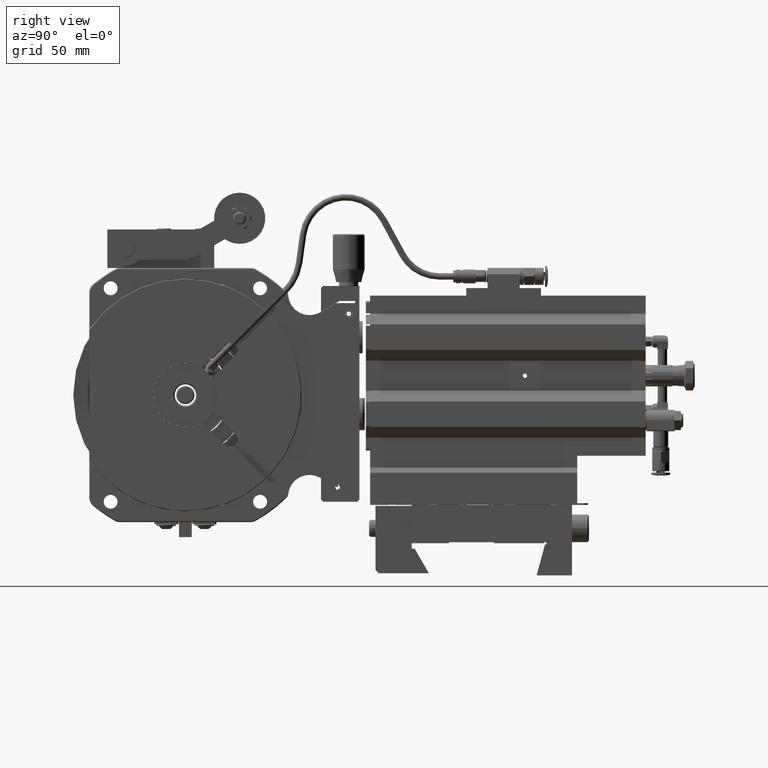
[diagram: clean part render]
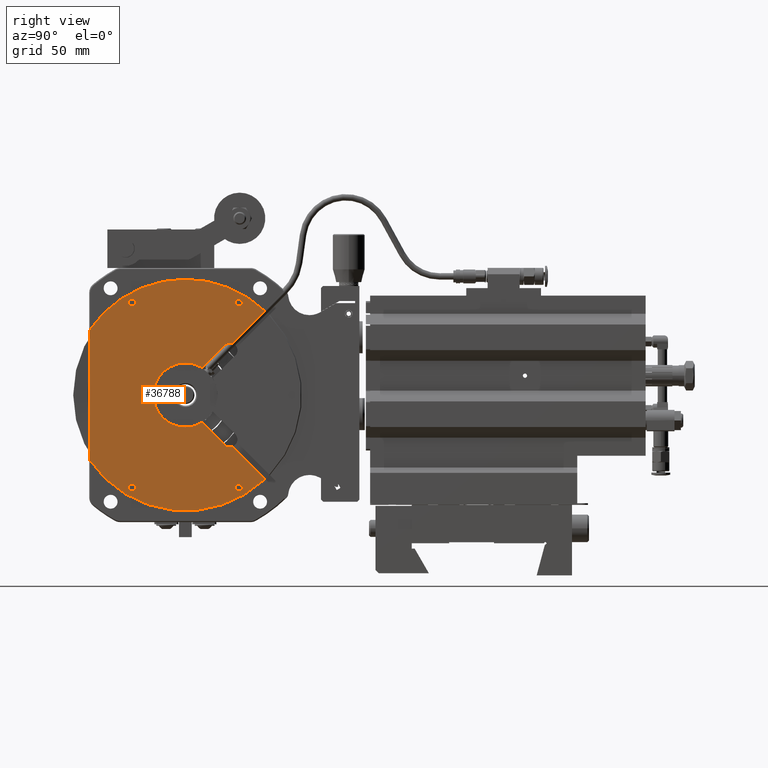
[diagram: same view with one face highlighted and labeled with its STEP entity id]
A machine part, right view. The second image highlights one B-rep face of the part: STEP entity #36788.
In plain terms, the highlighted planar face has unit normal (1, 0, 0).
Its self-contained STEP definition (entity closure, byte-faithful):
#98 = DIRECTION ( 'NONE',  ( -1.000000000000000000, -2.775557561562891351E-17, 0.000000000000000000 ) ) ;
#434 = EDGE_CURVE ( 'NONE', #58456, #15086, #33920, .T. ) ;
#784 = DIRECTION ( 'NONE',  ( 0.000000000000000000, 0.000000000000000000, -1.000000000000000000 ) ) ;
#974 = CARTESIAN_POINT ( 'NONE',  ( 0.3661417322834993326, 1.023622047244150846, -1.639813786977230237 ) ) ;
#1434 = VERTEX_POINT ( 'NONE', #9101 ) ;
#1710 = EDGE_CURVE ( 'NONE', #1434, #60061, #22628, .T. ) ;
#2246 = VERTEX_POINT ( 'NONE', #56303 ) ;
#2681 = ORIENTED_EDGE ( 'NONE', *, *, #33954, .F. ) ;
#3244 = DIRECTION ( 'NONE',  ( -1.000000000000000000, -2.775557561562891351E-17, 0.000000000000000000 ) ) ;
#3613 = EDGE_CURVE ( 'NONE', #9409, #5123, #34610, .T. ) ;
#3758 = CIRCLE ( 'NONE', #24328, 2.133858267716535639 ) ;
#4122 = CARTESIAN_POINT ( 'NONE',  ( 0.3661417322834993882, 0.03937007874019381876, 2.133858267716535639 ) ) ;
#4452 = DIRECTION ( 'NONE',  ( 0.000000000000000000, 0.000000000000000000, -1.000000000000000000 ) ) ;
#4712 = DIRECTION ( 'NONE',  ( 0.000000000000000000, 0.000000000000000000, 1.000000000000000000 ) ) ;
#5028 = CARTESIAN_POINT ( 'NONE',  ( 0.3661417322834993882, -1.732283464566892750, 7.210342506960436032E-29 ) ) ;
#5123 = VERTEX_POINT ( 'NONE', #49149 ) ;
#5477 = AXIS2_PLACEMENT_3D ( 'NONE', #43325, #18893, #4452 ) ;
#5878 = VERTEX_POINT ( 'NONE', #25077 ) ;
#5903 = DIRECTION ( 'NONE',  ( 1.000000000000000000, 2.775557561562891351E-17, 0.000000000000000000 ) ) ;
#5952 = DIRECTION ( 'NONE',  ( 1.962615573354722656E-17, -0.7071067811865489050, -0.7071067811865460184 ) ) ;
#6746 = DIRECTION ( 'NONE',  ( 1.000000000000000000, 2.775557561562891351E-17, 0.000000000000000000 ) ) ;
#7298 = CARTESIAN_POINT ( 'NONE',  ( 0.3661417322834993326, 0.8606161435040957652, -0.9590413403544563176 ) ) ;
#7403 = EDGE_CURVE ( 'NONE', #38588, #38699, #59773, .T. ) ;
#7473 = CARTESIAN_POINT ( 'NONE',  ( 0.3661417322834994437, -1.732283464566892972, -1.189367407149556133 ) ) ;
#7505 = DIRECTION ( 'NONE',  ( 1.962615573354714952E-17, -0.7071067811865461294, -0.7071067811865487940 ) ) ;
#7518 = DIRECTION ( 'NONE',  ( -1.962615573354722656E-17, 0.7071067811865489050, -0.7071067811865460184 ) ) ;
#7685 = EDGE_CURVE ( 'NONE', #47093, #5878, #24951, .T. ) ;
#7884 = ORIENTED_EDGE ( 'NONE', *, *, #60158, .F. ) ;
#8436 = CARTESIAN_POINT ( 'NONE',  ( 0.3661417322834993326, 0.7631801697185477407, 0.9186820385494527397 ) ) ;
#8735 = AXIS2_PLACEMENT_3D ( 'NONE', #33634, #9464, #29142 ) ;
#9101 = CARTESIAN_POINT ( 'NONE',  ( 0.3661417322834993326, -0.9448818897637513148, 1.639813786977237786 ) ) ;
#9409 = VERTEX_POINT ( 'NONE', #60518 ) ;
#9464 = DIRECTION ( 'NONE',  ( 1.000000000000000000, 2.775557561562891351E-17, 0.000000000000000000 ) ) ;
#9966 = CIRCLE ( 'NONE', #56166, 0.5905511811023621549 ) ;
#9990 = ORIENTED_EDGE ( 'NONE', *, *, #39467, .F. ) ;
#10055 = ORIENTED_EDGE ( 'NONE', *, *, #63501, .F. ) ;
#10370 = DIRECTION ( 'NONE',  ( 0.000000000000000000, 0.000000000000000000, 1.000000000000000000 ) ) ;
#10597 = ORIENTED_EDGE ( 'NONE', *, *, #54410, .F. ) ;
#10730 = EDGE_CURVE ( 'NONE', #5123, #9409, #30331, .T. ) ;
#10853 = VECTOR ( 'NONE', #5952, 39.37007874015748854 ) ;
#11021 = VECTOR ( 'NONE', #55968, 39.37007874015748854 ) ;
#11276 = VERTEX_POINT ( 'NONE', #14245 ) ;
#11357 = CARTESIAN_POINT ( 'NONE',  ( 0.3661417322834993326, 1.023622047244150846, -1.704774416898489964 ) ) ;
#11408 = CARTESIAN_POINT ( 'NONE',  ( 0.3661417322834992216, 1.650257441073912146, -1.688836141362150212 ) ) ;
#11466 = ORIENTED_EDGE ( 'NONE', *, *, #63627, .F. ) ;
#12178 = CARTESIAN_POINT ( 'NONE',  ( 0.3661417322834994437, -1.732283464566892972, 1.189367407149556133 ) ) ;
#12378 = DIRECTION ( 'NONE',  ( 0.000000000000000000, 0.000000000000000000, -1.000000000000000000 ) ) ;
#13095 = ORIENTED_EDGE ( 'NONE', *, *, #41914, .F. ) ;
#13350 = FACE_BOUND ( 'NONE', #52584, .T. ) ;
#13560 = AXIS2_PLACEMENT_3D ( 'NONE', #32513, #36678, #46938 ) ;
#14110 = CIRCLE ( 'NONE', #25440, 0.1377952755905511584 ) ;
#14245 = CARTESIAN_POINT ( 'NONE',  ( 0.3661417322834992216, 1.508757897156520089, 1.547336597444758821 ) ) ;
#14457 = CIRCLE ( 'NONE', #51486, 0.1377952755905511584 ) ;
#14617 = AXIS2_PLACEMENT_3D ( 'NONE', #21420, #16241, #12378 ) ;
#15086 = VERTEX_POINT ( 'NONE', #37835 ) ;
#15496 = CARTESIAN_POINT ( 'NONE',  ( 0.3661417322834993882, 0.03937007874019381876, 7.212526238550921569E-29 ) ) ;
#16241 = DIRECTION ( 'NONE',  ( 1.000000000000000000, 2.775557561562891351E-17, 0.000000000000000000 ) ) ;
#16357 = CIRCLE ( 'NONE', #29749, 0.06496062992125951896 ) ;
#16748 = DIRECTION ( 'NONE',  ( 1.000000000000000000, 2.775557561562891351E-17, 0.000000000000000000 ) ) ;
#16904 = EDGE_CURVE ( 'NONE', #46315, #11276, #19439, .T. ) ;
#18002 = ORIENTED_EDGE ( 'NONE', *, *, #434, .F. ) ;
#18326 = VERTEX_POINT ( 'NONE', #31130 ) ;
#18486 = PLANE ( 'NONE',  #46508 ) ;
#18893 = DIRECTION ( 'NONE',  ( 1.000000000000000000, 2.775557561562891351E-17, 0.000000000000000000 ) ) ;
#19010 = DIRECTION ( 'NONE',  ( 0.000000000000000000, 0.000000000000000000, -1.000000000000000000 ) ) ;
#19124 = DIRECTION ( 'NONE',  ( 0.000000000000000000, 0.000000000000000000, -1.000000000000000000 ) ) ;
#19439 = CIRCLE ( 'NONE', #27703, 2.133858267716535639 ) ;
#19449 = FACE_BOUND ( 'NONE', #20821, .T. ) ;
#19765 = CARTESIAN_POINT ( 'NONE',  ( 0.3661417322834993326, 0.03937007874019388121, 0.5905511811023621549 ) ) ;
#20320 = ORIENTED_EDGE ( 'NONE', *, *, #7403, .F. ) ;
#20710 = CARTESIAN_POINT ( 'NONE',  ( 0.3661417322834993326, -0.9448818897637274450, -1.704774416898510614 ) ) ;
#20821 = EDGE_LOOP ( 'NONE', ( #43707, #13095 ) ) ;
#20861 = DIRECTION ( 'NONE',  ( 0.000000000000000000, 0.000000000000000000, 1.000000000000000000 ) ) ;
#21035 = DIRECTION ( 'NONE',  ( 1.000000000000000000, 2.775557561562891351E-17, 0.000000000000000000 ) ) ;
#21084 = LINE ( 'NONE', #50040, #10853 ) ;
#21259 = ORIENTED_EDGE ( 'NONE', *, *, #10730, .F. ) ;
#21420 = CARTESIAN_POINT ( 'NONE',  ( 0.3661417322834993326, -0.9448818897637274450, -1.704774416898510614 ) ) ;
#21509 = DIRECTION ( 'NONE',  ( 1.000000000000000000, 2.775557561562891351E-17, 0.000000000000000000 ) ) ;
#21837 = DIRECTION ( 'NONE',  ( 0.000000000000000000, 0.000000000000000000, -1.000000000000000000 ) ) ;
#21846 = DIRECTION ( 'NONE',  ( -1.000000000000000000, -2.775557561562891351E-17, 0.000000000000000000 ) ) ;
#21910 = CARTESIAN_POINT ( 'NONE',  ( 0.3661417322834993326, 0.7631801697185477407, -0.9186820385494527397 ) ) ;
#22300 = CIRCLE ( 'NONE', #38702, 0.1377952755905511584 ) ;
#22628 = CIRCLE ( 'NONE', #28783, 0.06496062992125951896 ) ;
#22968 = CARTESIAN_POINT ( 'NONE',  ( 0.3661417322834993326, 0.7631801697185477407, 0.9186820385494527397 ) ) ;
#23434 = VERTEX_POINT ( 'NONE', #33656 ) ;
#23561 = EDGE_LOOP ( 'NONE', ( #9990, #43001 ) ) ;
#23998 = FACE_BOUND ( 'NONE', #39943, .T. ) ;
#24328 = AXIS2_PLACEMENT_3D ( 'NONE', #52457, #3244, #38282 ) ;
#24585 = EDGE_CURVE ( 'NONE', #63672, #18326, #14457, .T. ) ;
#24951 = CIRCLE ( 'NONE', #14617, 0.06496062992125951896 ) ;
#25077 = CARTESIAN_POINT ( 'NONE',  ( 0.3661417322834993326, -0.9448818897637274450, -1.769735046819770119 ) ) ;
#25440 = AXIS2_PLACEMENT_3D ( 'NONE', #52676, #53295, #28863 ) ;
#26506 = ORIENTED_EDGE ( 'NONE', *, *, #16904, .F. ) ;
#27072 = DIRECTION ( 'NONE',  ( 0.000000000000000000, 0.000000000000000000, -1.000000000000000000 ) ) ;
#27338 = EDGE_CURVE ( 'NONE', #33554, #28431, #61623, .T. ) ;
#27676 = AXIS2_PLACEMENT_3D ( 'NONE', #59263, #21846, #41406 ) ;
#27703 = AXIS2_PLACEMENT_3D ( 'NONE', #15496, #98, #10370 ) ;
#28431 = VERTEX_POINT ( 'NONE', #44071 ) ;
#28783 = AXIS2_PLACEMENT_3D ( 'NONE', #55100, #50900, #46042 ) ;
#28863 = DIRECTION ( 'NONE',  ( 0.000000000000000000, 0.000000000000000000, -1.000000000000000000 ) ) ;
#29142 = DIRECTION ( 'NONE',  ( 0.000000000000000000, 0.000000000000000000, -1.000000000000000000 ) ) ;
#29749 = AXIS2_PLACEMENT_3D ( 'NONE', #11357, #5903, #784 ) ;
#30331 = CIRCLE ( 'NONE', #8735, 0.06496062992125951896 ) ;
#31130 = CARTESIAN_POINT ( 'NONE',  ( 0.3661417322834993326, 0.9109432990466826974, -0.9495219993349235388 ) ) ;
#31282 = ORIENTED_EDGE ( 'NONE', *, *, #56210, .F. ) ;
#31576 = DIRECTION ( 'NONE',  ( 0.000000000000000000, 0.000000000000000000, -1.000000000000000000 ) ) ;
#31811 = CARTESIAN_POINT ( 'NONE',  ( 0.3661417322834993326, 0.03937007874019381876, 7.212526238550921569E-29 ) ) ;
#32393 = ORIENTED_EDGE ( 'NONE', *, *, #3613, .F. ) ;
#32440 = VECTOR ( 'NONE', #7505, 39.37007874015748854 ) ;
#32513 = CARTESIAN_POINT ( 'NONE',  ( 0.3661417322834993326, 0.03937007874019381876, 7.212526238550921569E-29 ) ) ;
#33554 = VERTEX_POINT ( 'NONE', #22968 ) ;
#33634 = CARTESIAN_POINT ( 'NONE',  ( 0.3661417322834993326, 1.023622047244127087, 1.704774416898503731 ) ) ;
#33656 = CARTESIAN_POINT ( 'NONE',  ( 0.3661417322834993326, 1.508757897156520089, -1.547336597444758821 ) ) ;
#33920 = CIRCLE ( 'NONE', #49285, 0.06496062992125951896 ) ;
#33954 = EDGE_CURVE ( 'NONE', #56250, #37595, #42329, .T. ) ;
#34610 = CIRCLE ( 'NONE', #52081, 0.06496062992125951896 ) ;
#34847 = ORIENTED_EDGE ( 'NONE', *, *, #24585, .F. ) ;
#34872 = CIRCLE ( 'NONE', #27676, 2.133858267716535639 ) ;
#34886 = ORIENTED_EDGE ( 'NONE', *, *, #62029, .F. ) ;
#35882 = LINE ( 'NONE', #11408, #41851 ) ;
#36244 = ORIENTED_EDGE ( 'NONE', *, *, #54907, .F. ) ;
#36678 = DIRECTION ( 'NONE',  ( 1.000000000000000000, 2.775557561562891351E-17, 0.000000000000000000 ) ) ;
#36788 = ADVANCED_FACE ( 'NONE', ( #23998, #43891, #19449, #13350, #57770 ), #18486, .T. ) ;
#37595 = VERTEX_POINT ( 'NONE', #12178 ) ;
#37665 = ORIENTED_EDGE ( 'NONE', *, *, #54298, .F. ) ;
#37835 = CARTESIAN_POINT ( 'NONE',  ( 0.3661417322834993326, 1.023622047244150846, -1.769735046819749469 ) ) ;
#38118 = CARTESIAN_POINT ( 'NONE',  ( 0.3661417322834993326, 0.03937007874019381876, 7.212526238550921569E-29 ) ) ;
#38282 = DIRECTION ( 'NONE',  ( 0.000000000000000000, 0.000000000000000000, 1.000000000000000000 ) ) ;
#38588 = VERTEX_POINT ( 'NONE', #19765 ) ;
#38699 = VERTEX_POINT ( 'NONE', #52240 ) ;
#38702 = AXIS2_PLACEMENT_3D ( 'NONE', #45914, #21509, #20861 ) ;
#39467 = EDGE_CURVE ( 'NONE', #60061, #1434, #50665, .T. ) ;
#39943 = EDGE_LOOP ( 'NONE', ( #21259, #32393 ) ) ;
#39944 = VERTEX_POINT ( 'NONE', #51852 ) ;
#40613 = DIRECTION ( 'NONE',  ( 0.000000000000000000, 0.000000000000000000, -1.000000000000000000 ) ) ;
#40796 = EDGE_LOOP ( 'NONE', ( #34886, #26506, #10055, #2681, #62151, #10597, #34847, #37665, #36244, #7884, #20320, #11466, #50476, #42208 ) ) ;
#41135 = CARTESIAN_POINT ( 'NONE',  ( 0.3661417322834993326, 0.7631801697185477407, -0.9186820385494527397 ) ) ;
#41406 = DIRECTION ( 'NONE',  ( 0.000000000000000000, 0.000000000000000000, 1.000000000000000000 ) ) ;
#41493 = CARTESIAN_POINT ( 'NONE',  ( 0.3661417322834993326, 1.023622047244127087, 1.704774416898503731 ) ) ;
#41851 = VECTOR ( 'NONE', #7518, 39.37007874015748854 ) ;
#41914 = EDGE_CURVE ( 'NONE', #5878, #47093, #48823, .T. ) ;
#42208 = ORIENTED_EDGE ( 'NONE', *, *, #63650, .F. ) ;
#42329 = LINE ( 'NONE', #5028, #59590 ) ;
#43001 = ORIENTED_EDGE ( 'NONE', *, *, #1710, .F. ) ;
#43325 = CARTESIAN_POINT ( 'NONE',  ( 0.3661417322834993326, -0.9448818897637513148, 1.704774416898497291 ) ) ;
#43707 = ORIENTED_EDGE ( 'NONE', *, *, #7685, .F. ) ;
#43891 = FACE_BOUND ( 'NONE', #23561, .T. ) ;
#44071 = CARTESIAN_POINT ( 'NONE',  ( 0.3661417322834993326, 0.3479902337880359520, 0.5034921026189397297 ) ) ;
#45375 = CARTESIAN_POINT ( 'NONE',  ( 0.3661417322834993326, 0.8606161435040957652, -0.8212460647639051592 ) ) ;
#45724 = AXIS2_PLACEMENT_3D ( 'NONE', #20710, #21035, #40613 ) ;
#45914 = CARTESIAN_POINT ( 'NONE',  ( 0.3661417322834993326, 0.8606161435040957652, 0.8212460647639051592 ) ) ;
#45969 = LINE ( 'NONE', #41135, #11021 ) ;
#46042 = DIRECTION ( 'NONE',  ( 0.000000000000000000, 0.000000000000000000, -1.000000000000000000 ) ) ;
#46288 = DIRECTION ( 'NONE',  ( 0.000000000000000000, 0.000000000000000000, -1.000000000000000000 ) ) ;
#46315 = VERTEX_POINT ( 'NONE', #4122 ) ;
#46508 = AXIS2_PLACEMENT_3D ( 'NONE', #38118, #63565, #19124 ) ;
#46851 = EDGE_CURVE ( 'NONE', #23434, #56250, #34872, .T. ) ;
#46938 = DIRECTION ( 'NONE',  ( 0.000000000000000000, 0.000000000000000000, -1.000000000000000000 ) ) ;
#47093 = VERTEX_POINT ( 'NONE', #58158 ) ;
#48299 = CARTESIAN_POINT ( 'NONE',  ( 0.3661417322834993326, 0.03937007874019381876, 7.212526238550921569E-29 ) ) ;
#48623 = VERTEX_POINT ( 'NONE', #21910 ) ;
#48823 = CIRCLE ( 'NONE', #45724, 0.06496062992125951896 ) ;
#49149 = CARTESIAN_POINT ( 'NONE',  ( 0.3661417322834993326, 1.023622047244127087, 1.769735046819763236 ) ) ;
#49285 = AXIS2_PLACEMENT_3D ( 'NONE', #55654, #51138, #46288 ) ;
#50040 = CARTESIAN_POINT ( 'NONE',  ( 0.3661417322834992216, 1.650257441073912146, 1.688836141362150212 ) ) ;
#50476 = ORIENTED_EDGE ( 'NONE', *, *, #27338, .F. ) ;
#50665 = CIRCLE ( 'NONE', #5477, 0.06496062992125951896 ) ;
#50900 = DIRECTION ( 'NONE',  ( 1.000000000000000000, 2.775557561562891351E-17, 0.000000000000000000 ) ) ;
#51138 = DIRECTION ( 'NONE',  ( 1.000000000000000000, 2.775557561562891351E-17, 0.000000000000000000 ) ) ;
#51486 = AXIS2_PLACEMENT_3D ( 'NONE', #45375, #6746, #27072 ) ;
#51852 = CARTESIAN_POINT ( 'NONE',  ( 0.3661417322834993326, 0.3479902337880359520, -0.5034921026189397297 ) ) ;
#52081 = AXIS2_PLACEMENT_3D ( 'NONE', #41493, #16748, #31576 ) ;
#52240 = CARTESIAN_POINT ( 'NONE',  ( 0.3661417322834993326, 0.03937007874019381876, -0.5905511811023621549 ) ) ;
#52457 = CARTESIAN_POINT ( 'NONE',  ( 0.3661417322834993882, 0.03937007874019381876, 7.212526238550921569E-29 ) ) ;
#52584 = EDGE_LOOP ( 'NONE', ( #18002, #31282 ) ) ;
#52676 = CARTESIAN_POINT ( 'NONE',  ( 0.3661417322834993326, 0.8606161435040957652, -0.8212460647639051592 ) ) ;
#53295 = DIRECTION ( 'NONE',  ( 1.000000000000000000, 2.775557561562891351E-17, 0.000000000000000000 ) ) ;
#54094 = DIRECTION ( 'NONE',  ( 1.000000000000000000, 2.775557561562891351E-17, 0.000000000000000000 ) ) ;
#54298 = EDGE_CURVE ( 'NONE', #48623, #63672, #14110, .T. ) ;
#54410 = EDGE_CURVE ( 'NONE', #18326, #23434, #35882, .T. ) ;
#54810 = AXIS2_PLACEMENT_3D ( 'NONE', #48299, #54094, #19010 ) ;
#54907 = EDGE_CURVE ( 'NONE', #39944, #48623, #45969, .T. ) ;
#55100 = CARTESIAN_POINT ( 'NONE',  ( 0.3661417322834993326, -0.9448818897637513148, 1.704774416898497291 ) ) ;
#55654 = CARTESIAN_POINT ( 'NONE',  ( 0.3661417322834993326, 1.023622047244150846, -1.704774416898489964 ) ) ;
#55810 = CIRCLE ( 'NONE', #54810, 0.5905511811023621549 ) ;
#55968 = DIRECTION ( 'NONE',  ( -1.962615573354714952E-17, 0.7071067811865461294, -0.7071067811865487940 ) ) ;
#56166 = AXIS2_PLACEMENT_3D ( 'NONE', #31811, #60779, #21837 ) ;
#56210 = EDGE_CURVE ( 'NONE', #15086, #58456, #16357, .T. ) ;
#56250 = VERTEX_POINT ( 'NONE', #7473 ) ;
#56303 = CARTESIAN_POINT ( 'NONE',  ( 0.3661417322834993326, 0.9109432990466826974, 0.9495219993349235388 ) ) ;
#57770 = FACE_OUTER_BOUND ( 'NONE', #40796, .T. ) ;
#57973 = CARTESIAN_POINT ( 'NONE',  ( 0.3661417322834993326, -0.9448818897637513148, 1.769735046819756796 ) ) ;
#58158 = CARTESIAN_POINT ( 'NONE',  ( 0.3661417322834993326, -0.9448818897637274450, -1.639813786977251109 ) ) ;
#58456 = VERTEX_POINT ( 'NONE', #974 ) ;
#59263 = CARTESIAN_POINT ( 'NONE',  ( 0.3661417322834993882, 0.03937007874019381876, 7.212526238550921569E-29 ) ) ;
#59590 = VECTOR ( 'NONE', #4712, 39.37007874015748143 ) ;
#59773 = CIRCLE ( 'NONE', #13560, 0.5905511811023621549 ) ;
#60061 = VERTEX_POINT ( 'NONE', #57973 ) ;
#60158 = EDGE_CURVE ( 'NONE', #38699, #39944, #55810, .T. ) ;
#60518 = CARTESIAN_POINT ( 'NONE',  ( 0.3661417322834993326, 1.023622047244127087, 1.639813786977244225 ) ) ;
#60779 = DIRECTION ( 'NONE',  ( 1.000000000000000000, 2.775557561562891351E-17, 0.000000000000000000 ) ) ;
#61623 = LINE ( 'NONE', #8436, #32440 ) ;
#62029 = EDGE_CURVE ( 'NONE', #11276, #2246, #21084, .T. ) ;
#62151 = ORIENTED_EDGE ( 'NONE', *, *, #46851, .F. ) ;
#63501 = EDGE_CURVE ( 'NONE', #37595, #46315, #3758, .T. ) ;
#63565 = DIRECTION ( 'NONE',  ( 1.000000000000000000, 2.775557561562891351E-17, 0.000000000000000000 ) ) ;
#63627 = EDGE_CURVE ( 'NONE', #28431, #38588, #9966, .T. ) ;
#63650 = EDGE_CURVE ( 'NONE', #2246, #33554, #22300, .T. ) ;
#63672 = VERTEX_POINT ( 'NONE', #7298 ) ;